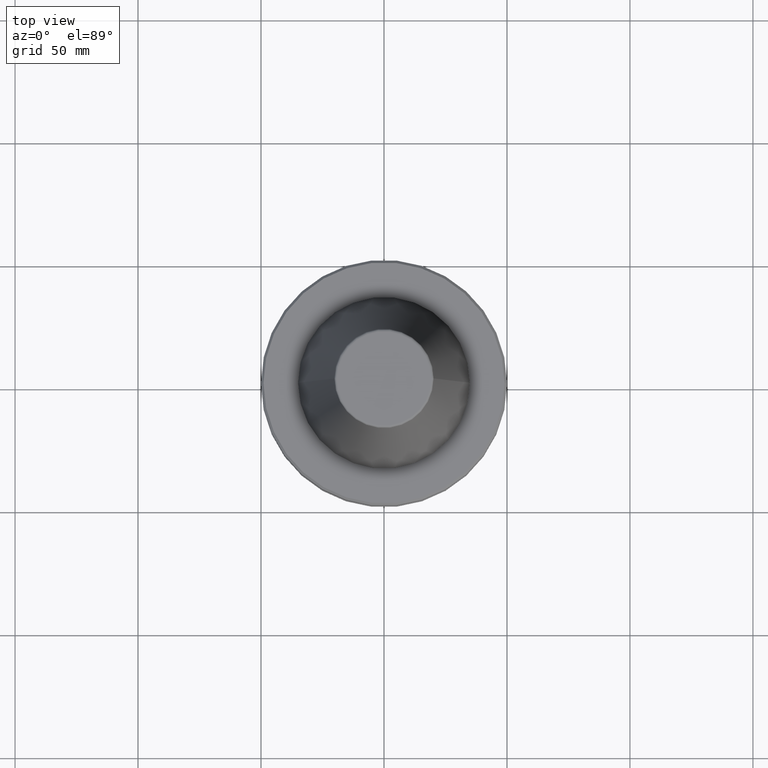
[diagram: clean part render]
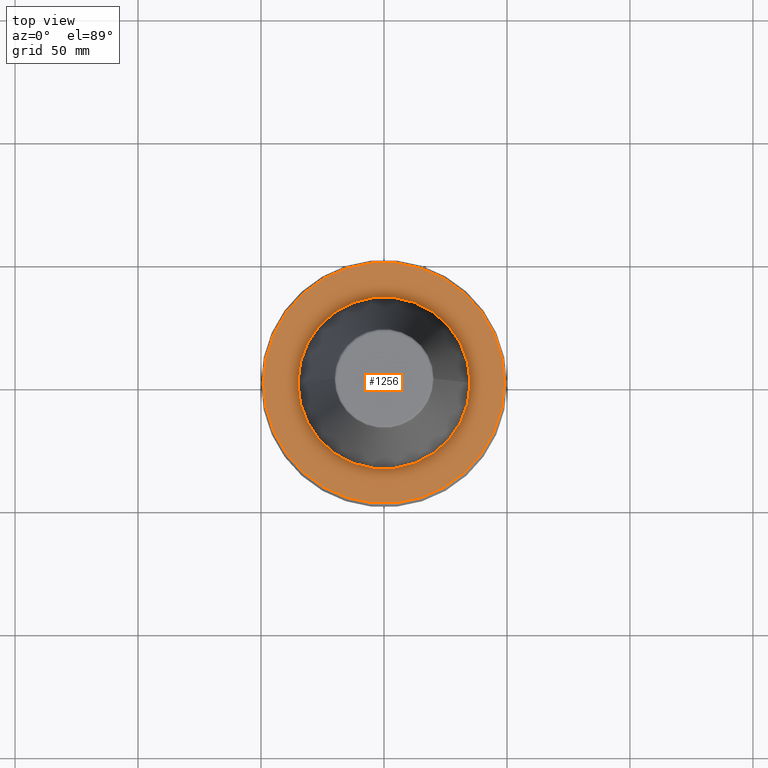
[diagram: same view with one face highlighted and labeled with its STEP entity id]
A machine part, top view. The second image highlights one B-rep face of the part: STEP entity #1256.
In plain terms, the highlighted planar face has unit normal (0, 0, -1).
Its self-contained STEP definition (entity closure, byte-faithful):
#19 = EDGE_CURVE ( 'NONE', #587, #1082, #257, .T. ) ;
#102 = EDGE_CURVE ( 'NONE', #782, #511, #958, .T. ) ;
#205 = EDGE_CURVE ( 'NONE', #1082, #587, #1109, .T. ) ;
#257 = CIRCLE ( 'NONE', #606, 34.99999999999980800 ) ;
#301 = EDGE_LOOP ( 'NONE', ( #623, #1060 ) ) ;
#356 = CARTESIAN_POINT ( 'NONE',  ( 34.99999999999980800, 0.0000000000000000000, -3.000000000001557000 ) ) ;
#370 = EDGE_CURVE ( 'NONE', #511, #782, #383, .T. ) ;
#378 = PLANE ( 'NONE',  #946 ) ;
#383 = CIRCLE ( 'NONE', #537, 49.00000000000004300 ) ;
#422 = DIRECTION ( 'NONE',  ( -0.0000000000000000000, -0.0000000000000000000, 1.000000000000000000 ) ) ;
#434 = AXIS2_PLACEMENT_3D ( 'NONE', #817, #422, #573 ) ;
#442 = DIRECTION ( 'NONE',  ( -0.0000000000000000000, -0.0000000000000000000, 1.000000000000000000 ) ) ;
#493 = DIRECTION ( 'NONE',  ( 0.0000000000000000000, 0.0000000000000000000, -1.000000000000000000 ) ) ;
#511 = VERTEX_POINT ( 'NONE', #859 ) ;
#537 = AXIS2_PLACEMENT_3D ( 'NONE', #967, #442, #1106 ) ;
#568 = AXIS2_PLACEMENT_3D ( 'NONE', #879, #809, #888 ) ;
#573 = DIRECTION ( 'NONE',  ( 1.000000000000000000, 0.0000000000000000000, 0.0000000000000000000 ) ) ;
#587 = VERTEX_POINT ( 'NONE', #781 ) ;
#603 = FACE_BOUND ( 'NONE', #744, .T. ) ;
#606 = AXIS2_PLACEMENT_3D ( 'NONE', #1311, #947, #961 ) ;
#623 = ORIENTED_EDGE ( 'NONE', *, *, #102, .T. ) ;
#657 = ORIENTED_EDGE ( 'NONE', *, *, #205, .F. ) ;
#744 = EDGE_LOOP ( 'NONE', ( #657, #1164 ) ) ;
#781 = CARTESIAN_POINT ( 'NONE',  ( -34.99999999999980800, 4.286263797015712800E-015, -3.000000000001557000 ) ) ;
#782 = VERTEX_POINT ( 'NONE', #841 ) ;
#809 = DIRECTION ( 'NONE',  ( -0.0000000000000000000, -0.0000000000000000000, 1.000000000000000000 ) ) ;
#817 = CARTESIAN_POINT ( 'NONE',  ( 0.0000000000000000000, 0.0000000000000000000, -3.000000000001334900 ) ) ;
#841 = CARTESIAN_POINT ( 'NONE',  ( -49.00000000000004300, 0.0000000000000000000, -3.000000000001334900 ) ) ;
#845 = FACE_OUTER_BOUND ( 'NONE', #301, .T. ) ;
#859 = CARTESIAN_POINT ( 'NONE',  ( 49.00000000000004300, 6.062001655779403200E-015, -3.000000000001334900 ) ) ;
#879 = CARTESIAN_POINT ( 'NONE',  ( 0.0000000000000000000, 0.0000000000000000000, -3.000000000001557000 ) ) ;
#888 = DIRECTION ( 'NONE',  ( 1.000000000000000000, 0.0000000000000000000, 0.0000000000000000000 ) ) ;
#946 = AXIS2_PLACEMENT_3D ( 'NONE', #1332, #493, #1217 ) ;
#947 = DIRECTION ( 'NONE',  ( -0.0000000000000000000, -0.0000000000000000000, 1.000000000000000000 ) ) ;
#958 = CIRCLE ( 'NONE', #434, 49.00000000000004300 ) ;
#961 = DIRECTION ( 'NONE',  ( 1.000000000000000000, 0.0000000000000000000, 0.0000000000000000000 ) ) ;
#967 = CARTESIAN_POINT ( 'NONE',  ( 0.0000000000000000000, 0.0000000000000000000, -3.000000000001334900 ) ) ;
#1060 = ORIENTED_EDGE ( 'NONE', *, *, #370, .T. ) ;
#1082 = VERTEX_POINT ( 'NONE', #356 ) ;
#1106 = DIRECTION ( 'NONE',  ( 1.000000000000000000, 0.0000000000000000000, 0.0000000000000000000 ) ) ;
#1109 = CIRCLE ( 'NONE', #568, 34.99999999999980800 ) ;
#1164 = ORIENTED_EDGE ( 'NONE', *, *, #19, .F. ) ;
#1217 = DIRECTION ( 'NONE',  ( -1.000000000000000000, 0.0000000000000000000, -0.0000000000000000000 ) ) ;
#1256 = ADVANCED_FACE ( 'NONE', ( #603, #845 ), #378, .F. ) ;
#1311 = CARTESIAN_POINT ( 'NONE',  ( 0.0000000000000000000, 0.0000000000000000000, -3.000000000001557000 ) ) ;
#1332 = CARTESIAN_POINT ( 'NONE',  ( 0.0000000000000000000, 49.00000000000004300, -3.000000000001446000 ) ) ;